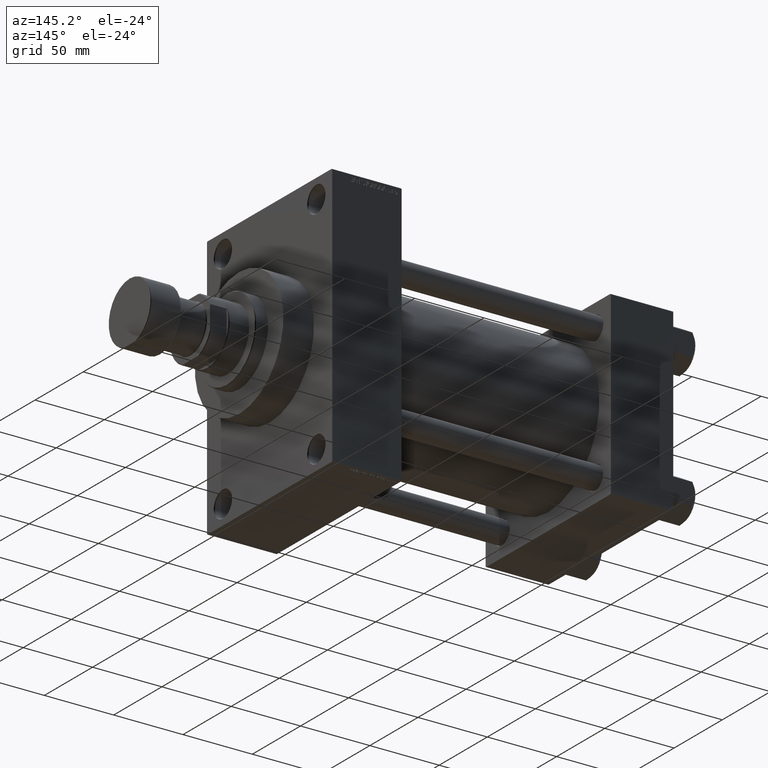
[diagram: clean part render]
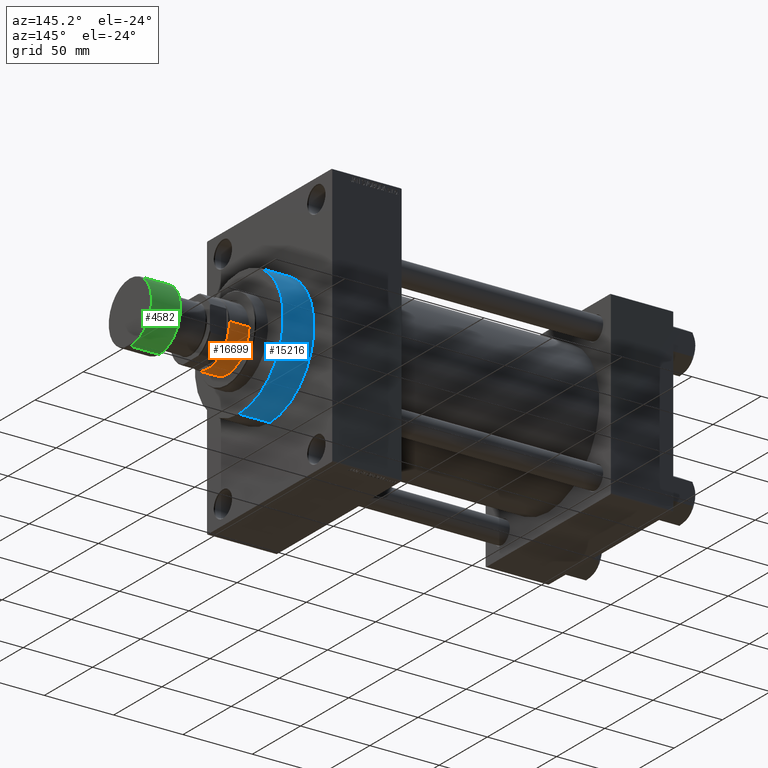
[diagram: same view with three faces highlighted in distinct colors, each labeled with its STEP entity id]
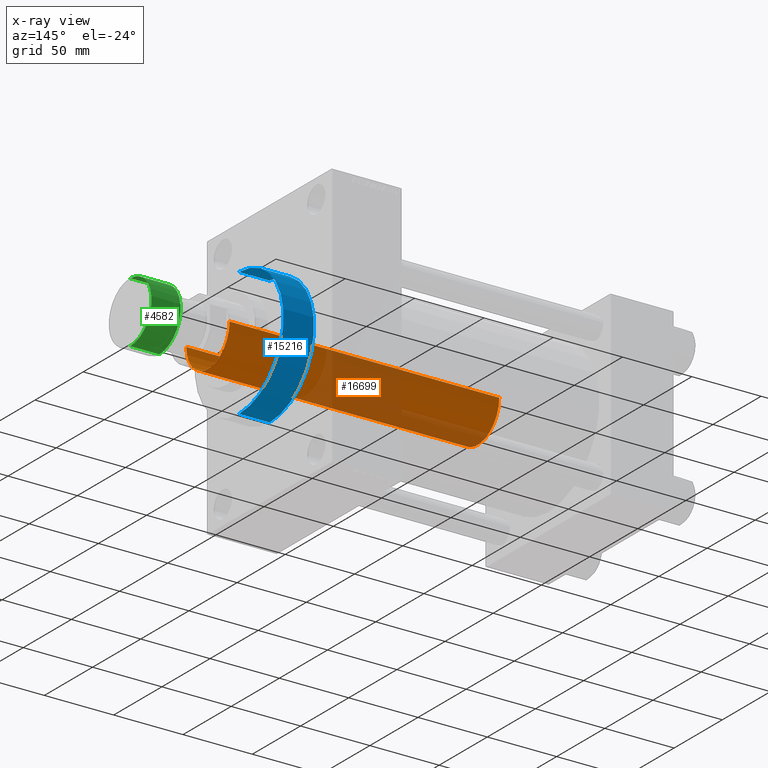
[diagram: x-ray of the same camera — body ghosted, the three highlighted faces saturated]
A machine part, auxiliary view with three faces highlighted in distinct colors.
The next image is the same camera in x-ray (body ghosted, the three faces saturated) — at least one of them is partly hidden behind the body in this view.
Their STEP definitions:

[orange] entity #16699 — the highlighted cylindrical surface (partial cylindrical patch) has radius 22.5 mm, axis along (-1, 0, 0).
#551 = CARTESIAN_POINT ( 'NONE',  ( -22.50000000000000355, 0.000000000000000000, 51.00000000000000000 ) ) ;
#1054 = AXIS2_PLACEMENT_3D ( 'NONE', #7165, #11034, #14213 ) ;
#3473 = LINE ( 'NONE', #22921, #27900 ) ;
#5341 = VERTEX_POINT ( 'NONE', #551 ) ;
#5396 = ORIENTED_EDGE ( 'NONE', *, *, #43530, .F. ) ;
#6998 = CARTESIAN_POINT ( 'NONE',  ( 0.000000000000000000, 0.000000000000000000, 245.5000000000000000 ) ) ;
#7165 = CARTESIAN_POINT ( 'NONE',  ( 0.000000000000000000, 0.000000000000000000, 51.00000000000000000 ) ) ;
#11034 = DIRECTION ( 'NONE',  ( 0.000000000000000000, 0.000000000000000000, 1.000000000000000000 ) ) ;
#11421 = ORIENTED_EDGE ( 'NONE', *, *, #12497, .T. ) ;
#12497 = EDGE_CURVE ( 'NONE', #16873, #24155, #15534, .T. ) ;
#13130 = EDGE_LOOP ( 'NONE', ( #11421, #46215, #22881, #5396 ) ) ;
#13253 = CYLINDRICAL_SURFACE ( 'NONE', #26507, 22.50000000000000355 ) ;
#14213 = DIRECTION ( 'NONE',  ( 1.000000000000000000, 0.000000000000000000, 0.000000000000000000 ) ) ;
#14513 = DIRECTION ( 'NONE',  ( 1.000000000000000000, 0.000000000000000000, 0.000000000000000000 ) ) ;
#14666 = VECTOR ( 'NONE', #32208, 1000.000000000000000 ) ;
#15534 = CIRCLE ( 'NONE', #31053, 22.50000000000000355 ) ;
#16699 = ADVANCED_FACE ( 'NONE', ( #47074 ), #13253, .T. ) ;
#16873 = VERTEX_POINT ( 'NONE', #18583 ) ;
#16912 = DIRECTION ( 'NONE',  ( -0.000000000000000000, -0.000000000000000000, -1.000000000000000000 ) ) ;
#17374 = LINE ( 'NONE', #39277, #14666 ) ;
#18555 = DIRECTION ( 'NONE',  ( -0.000000000000000000, -0.000000000000000000, -1.000000000000000000 ) ) ;
#18583 = CARTESIAN_POINT ( 'NONE',  ( -22.50000000000000355, 0.000000000000000000, 245.5000000000000000 ) ) ;
#20724 = CARTESIAN_POINT ( 'NONE',  ( 22.50000000000000355, 2.755455298081545172E-15, 51.00000000000000000 ) ) ;
#22282 = VERTEX_POINT ( 'NONE', #20724 ) ;
#22881 = ORIENTED_EDGE ( 'NONE', *, *, #27566, .T. ) ;
#22921 = CARTESIAN_POINT ( 'NONE',  ( 22.50000000000000355, 2.755455298081545172E-15, 246.0000000000000000 ) ) ;
#24155 = VERTEX_POINT ( 'NONE', #47515 ) ;
#26507 = AXIS2_PLACEMENT_3D ( 'NONE', #34931, #16912, #28093 ) ;
#27566 = EDGE_CURVE ( 'NONE', #22282, #5341, #42228, .T. ) ;
#27900 = VECTOR ( 'NONE', #18555, 1000.000000000000000 ) ;
#28093 = DIRECTION ( 'NONE',  ( -1.000000000000000000, 0.000000000000000000, 0.000000000000000000 ) ) ;
#31053 = AXIS2_PLACEMENT_3D ( 'NONE', #6998, #41032, #14513 ) ;
#32208 = DIRECTION ( 'NONE',  ( -0.000000000000000000, -0.000000000000000000, -1.000000000000000000 ) ) ;
#34931 = CARTESIAN_POINT ( 'NONE',  ( 0.000000000000000000, 0.000000000000000000, 246.0000000000000000 ) ) ;
#39277 = CARTESIAN_POINT ( 'NONE',  ( -22.50000000000000355, 0.000000000000000000, 246.0000000000000000 ) ) ;
#41032 = DIRECTION ( 'NONE',  ( 0.000000000000000000, 0.000000000000000000, -1.000000000000000000 ) ) ;
#42228 = CIRCLE ( 'NONE', #1054, 22.50000000000000355 ) ;
#43530 = EDGE_CURVE ( 'NONE', #16873, #5341, #17374, .T. ) ;
#46215 = ORIENTED_EDGE ( 'NONE', *, *, #47435, .T. ) ;
#47074 = FACE_OUTER_BOUND ( 'NONE', #13130, .T. ) ;
#47435 = EDGE_CURVE ( 'NONE', #24155, #22282, #3473, .T. ) ;
#47515 = CARTESIAN_POINT ( 'NONE',  ( 22.50000000000000355, 2.755455298081545172E-15, 245.5000000000000000 ) ) ;

[blue] entity #15216 — the highlighted cylindrical surface (partial cylindrical patch) has radius 46 mm, axis along (-1, -0, -0).
#1039 = ORIENTED_EDGE ( 'NONE', *, *, #3050, .T. ) ;
#2396 = FACE_OUTER_BOUND ( 'NONE', #7971, .T. ) ;
#3050 = EDGE_CURVE ( 'NONE', #28510, #14486, #43954, .T. ) ;
#3150 = VECTOR ( 'NONE', #8130, 1000.000000000000000 ) ;
#4006 = CARTESIAN_POINT ( 'NONE',  ( 268.0000000000000000, 5.633375276077824704E-15, -46.00000000000000000 ) ) ;
#6076 = DIRECTION ( 'NONE',  ( 1.000000000000000000, 0.000000000000000000, 0.000000000000000000 ) ) ;
#7971 = EDGE_LOOP ( 'NONE', ( #33614, #42960, #1039, #45152 ) ) ;
#8130 = DIRECTION ( 'NONE',  ( -1.000000000000000000, -0.000000000000000000, -0.000000000000000000 ) ) ;
#8783 = LINE ( 'NONE', #24332, #34487 ) ;
#10759 = CARTESIAN_POINT ( 'NONE',  ( 268.0000000000000000, 0.000000000000000000, 46.00000000000000000 ) ) ;
#13669 = EDGE_CURVE ( 'NONE', #39098, #28510, #45590, .T. ) ;
#14486 = VERTEX_POINT ( 'NONE', #19143 ) ;
#15216 = ADVANCED_FACE ( 'NONE', ( #2396 ), #17229, .T. ) ;
#16845 = AXIS2_PLACEMENT_3D ( 'NONE', #17502, #6076, #28438 ) ;
#17229 = CYLINDRICAL_SURFACE ( 'NONE', #30368, 46.00000000000000000 ) ;
#17502 = CARTESIAN_POINT ( 'NONE',  ( 268.0000000000000000, 0.000000000000000000, 0.000000000000000000 ) ) ;
#18782 = VERTEX_POINT ( 'NONE', #10759 ) ;
#19143 = CARTESIAN_POINT ( 'NONE',  ( 246.0000000000000000, 0.000000000000000000, 46.00000000000000000 ) ) ;
#23615 = DIRECTION ( 'NONE',  ( -1.000000000000000000, -0.000000000000000000, -0.000000000000000000 ) ) ;
#24332 = CARTESIAN_POINT ( 'NONE',  ( 268.0000000000000000, 0.000000000000000000, 46.00000000000000000 ) ) ;
#25295 = AXIS2_PLACEMENT_3D ( 'NONE', #38785, #28538, #43386 ) ;
#26135 = CIRCLE ( 'NONE', #16845, 46.00000000000000000 ) ;
#28195 = EDGE_CURVE ( 'NONE', #18782, #14486, #8783, .T. ) ;
#28405 = DIRECTION ( 'NONE',  ( 0.000000000000000000, 0.000000000000000000, 1.000000000000000000 ) ) ;
#28438 = DIRECTION ( 'NONE',  ( 0.000000000000000000, 0.000000000000000000, -1.000000000000000000 ) ) ;
#28510 = VERTEX_POINT ( 'NONE', #30853 ) ;
#28538 = DIRECTION ( 'NONE',  ( 1.000000000000000000, 0.000000000000000000, 0.000000000000000000 ) ) ;
#30368 = AXIS2_PLACEMENT_3D ( 'NONE', #32065, #46916, #28405 ) ;
#30853 = CARTESIAN_POINT ( 'NONE',  ( 246.0000000000000000, 5.633375276077824704E-15, -46.00000000000000000 ) ) ;
#31026 = CARTESIAN_POINT ( 'NONE',  ( 268.0000000000000000, 5.633375276077824704E-15, -46.00000000000000000 ) ) ;
#32065 = CARTESIAN_POINT ( 'NONE',  ( 268.0000000000000000, 0.000000000000000000, 0.000000000000000000 ) ) ;
#33614 = ORIENTED_EDGE ( 'NONE', *, *, #37684, .F. ) ;
#34487 = VECTOR ( 'NONE', #23615, 1000.000000000000000 ) ;
#37684 = EDGE_CURVE ( 'NONE', #39098, #18782, #26135, .T. ) ;
#38785 = CARTESIAN_POINT ( 'NONE',  ( 246.0000000000000000, 0.000000000000000000, 0.000000000000000000 ) ) ;
#39098 = VERTEX_POINT ( 'NONE', #31026 ) ;
#42960 = ORIENTED_EDGE ( 'NONE', *, *, #13669, .T. ) ;
#43386 = DIRECTION ( 'NONE',  ( 0.000000000000000000, 0.000000000000000000, -1.000000000000000000 ) ) ;
#43954 = CIRCLE ( 'NONE', #25295, 46.00000000000000000 ) ;
#45152 = ORIENTED_EDGE ( 'NONE', *, *, #28195, .F. ) ;
#45590 = LINE ( 'NONE', #4006, #3150 ) ;
#46916 = DIRECTION ( 'NONE',  ( -1.000000000000000000, -0.000000000000000000, -0.000000000000000000 ) ) ;

[green] entity #4582 — the highlighted cylindrical surface (partial cylindrical patch) has radius 22 mm, axis along (1, 0, 0).
#307 = CARTESIAN_POINT ( 'NONE',  ( -22.00000000000000000, 2.694222958124176809E-15, -21.50000000000000000 ) ) ;
#1045 = CARTESIAN_POINT ( 'NONE',  ( -22.00000000000000000, 2.694222958124176809E-15, -0.5000000000000004441 ) ) ;
#2114 = VERTEX_POINT ( 'NONE', #8027 ) ;
#3879 = ORIENTED_EDGE ( 'NONE', *, *, #26932, .T. ) ;
#4346 = DIRECTION ( 'NONE',  ( 1.000000000000000000, 0.000000000000000000, 0.000000000000000000 ) ) ;
#4582 = ADVANCED_FACE ( 'NONE', ( #31173 ), #38002, .T. ) ;
#5737 = CIRCLE ( 'NONE', #11946, 22.00000000000000000 ) ;
#6077 = LINE ( 'NONE', #16544, #18497 ) ;
#6388 = CARTESIAN_POINT ( 'NONE',  ( 0.000000000000000000, 0.000000000000000000, -0.5000000000000004441 ) ) ;
#6405 = AXIS2_PLACEMENT_3D ( 'NONE', #8228, #34737, #4346 ) ;
#7877 = ORIENTED_EDGE ( 'NONE', *, *, #22605, .T. ) ;
#8027 = CARTESIAN_POINT ( 'NONE',  ( 22.00000000000000000, 0.000000000000000000, -21.50000000000000000 ) ) ;
#8101 = EDGE_CURVE ( 'NONE', #18834, #30647, #6077, .T. ) ;
#8228 = CARTESIAN_POINT ( 'NONE',  ( 0.000000000000000000, 0.000000000000000000, -21.50000000000000000 ) ) ;
#11946 = AXIS2_PLACEMENT_3D ( 'NONE', #6388, #22164, #44322 ) ;
#16184 = ORIENTED_EDGE ( 'NONE', *, *, #34694, .F. ) ;
#16544 = CARTESIAN_POINT ( 'NONE',  ( -22.00000000000000000, 2.694222958124176809E-15, -22.00000000000000000 ) ) ;
#16784 = DIRECTION ( 'NONE',  ( 0.000000000000000000, 0.000000000000000000, 1.000000000000000000 ) ) ;
#18497 = VECTOR ( 'NONE', #16784, 1000.000000000000000 ) ;
#18834 = VERTEX_POINT ( 'NONE', #307 ) ;
#19625 = CIRCLE ( 'NONE', #6405, 22.00000000000000000 ) ;
#19740 = DIRECTION ( 'NONE',  ( 1.000000000000000000, 0.000000000000000000, 0.000000000000000000 ) ) ;
#19821 = VECTOR ( 'NONE', #43240, 1000.000000000000000 ) ;
#21474 = AXIS2_PLACEMENT_3D ( 'NONE', #30454, #34585, #19740 ) ;
#22164 = DIRECTION ( 'NONE',  ( -0.000000000000000000, -0.000000000000000000, -1.000000000000000000 ) ) ;
#22605 = EDGE_CURVE ( 'NONE', #2114, #18834, #19625, .T. ) ;
#24201 = VERTEX_POINT ( 'NONE', #25591 ) ;
#25591 = CARTESIAN_POINT ( 'NONE',  ( 22.00000000000000000, 0.000000000000000000, -0.5000000000000004441 ) ) ;
#26932 = EDGE_CURVE ( 'NONE', #30647, #24201, #5737, .T. ) ;
#28388 = LINE ( 'NONE', #36190, #19821 ) ;
#28469 = ORIENTED_EDGE ( 'NONE', *, *, #8101, .T. ) ;
#30454 = CARTESIAN_POINT ( 'NONE',  ( 0.000000000000000000, 0.000000000000000000, -22.00000000000000000 ) ) ;
#30647 = VERTEX_POINT ( 'NONE', #1045 ) ;
#31173 = FACE_OUTER_BOUND ( 'NONE', #39962, .T. ) ;
#34585 = DIRECTION ( 'NONE',  ( 0.000000000000000000, 0.000000000000000000, 1.000000000000000000 ) ) ;
#34694 = EDGE_CURVE ( 'NONE', #2114, #24201, #28388, .T. ) ;
#34737 = DIRECTION ( 'NONE',  ( 0.000000000000000000, 0.000000000000000000, 1.000000000000000000 ) ) ;
#36190 = CARTESIAN_POINT ( 'NONE',  ( 22.00000000000000000, 0.000000000000000000, -22.00000000000000000 ) ) ;
#38002 = CYLINDRICAL_SURFACE ( 'NONE', #21474, 22.00000000000000000 ) ;
#39962 = EDGE_LOOP ( 'NONE', ( #7877, #28469, #3879, #16184 ) ) ;
#43240 = DIRECTION ( 'NONE',  ( 0.000000000000000000, 0.000000000000000000, 1.000000000000000000 ) ) ;
#44322 = DIRECTION ( 'NONE',  ( 1.000000000000000000, 0.000000000000000000, 0.000000000000000000 ) ) ;